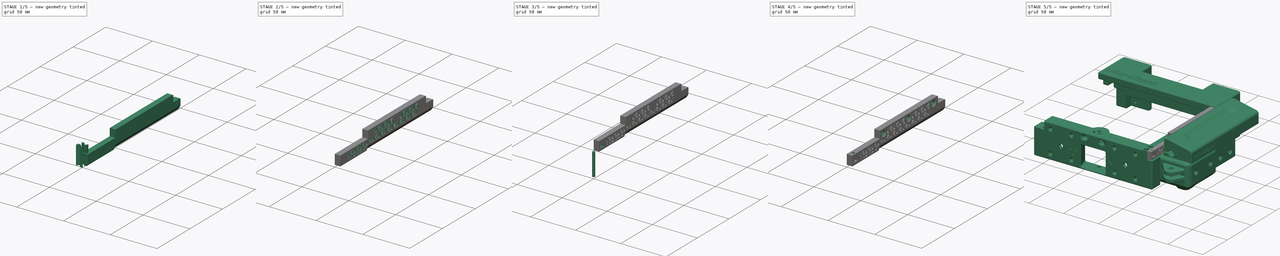
[diagram: build sequence overview — one tinted view per stage of 5, left to right]
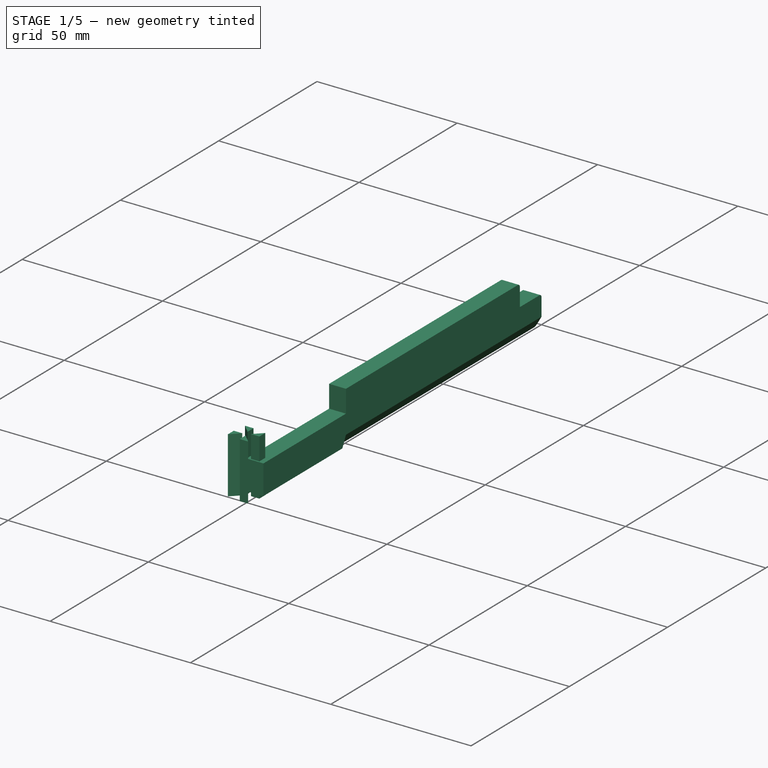
[diagram: stage 1 of 5 — iso view after this stage's code; geometry added in this stage tinted green]
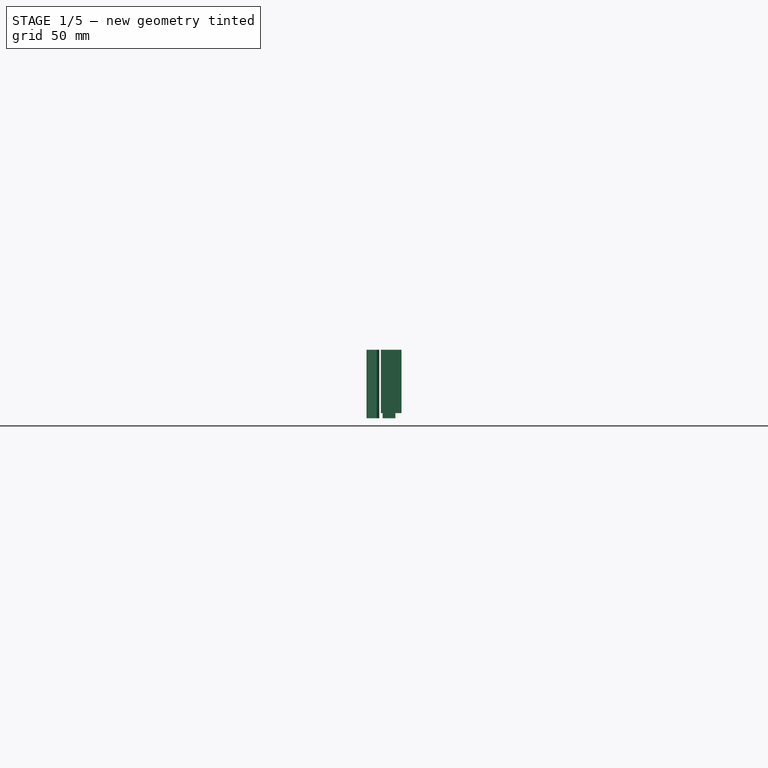
[diagram: stage 1 of 5 — front view after this stage's code; geometry added in this stage tinted green]
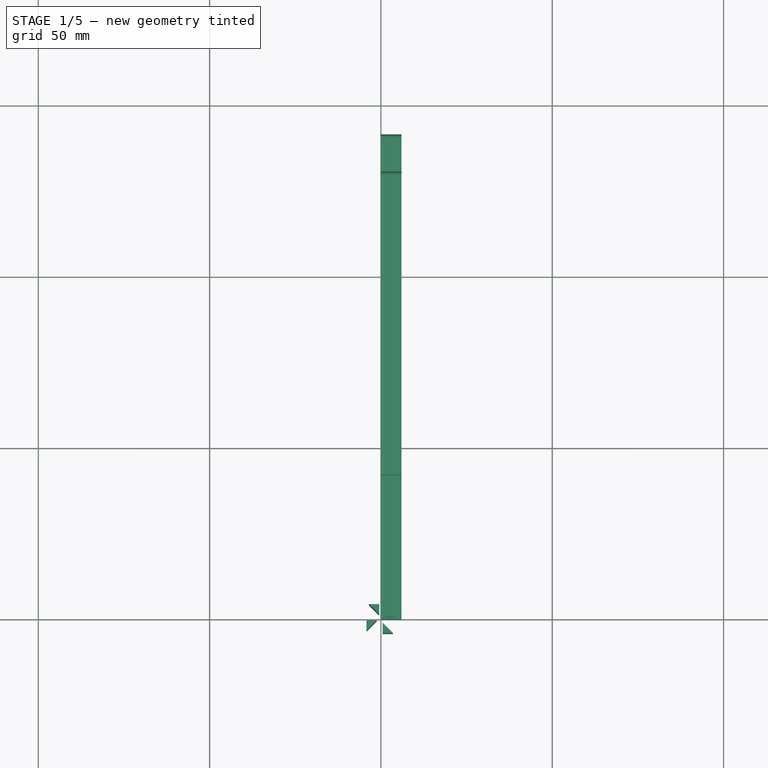
[diagram: stage 1 of 5 — top view after this stage's code; geometry added in this stage tinted green]
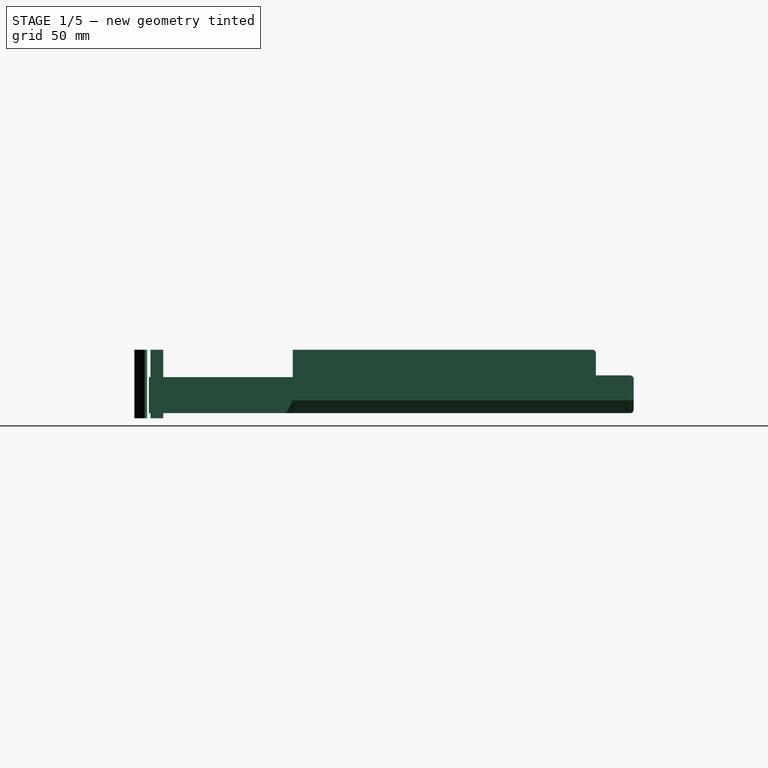
[diagram: stage 1 of 5 — right view after this stage's code; geometry added in this stage tinted green]
FCSTD DOCUMENT  (FreeCAD 0.16RUnknown)
Label: UpperLidRail
License: All rights reserved
LicenseURL: http://en.wikipedia.org/wiki/All_rights_reserved
objects: Part::FeaturePython×21, Sketcher::SketchObject×11, Part::Cut×9, PartDesign::Pad×7, App::DocumentObjectGroup×5, Part::Fillet×4, Part::Mirroring×2, Spreadsheet::Sheet×1, Part::Sweep×1, Part::MultiFuse×1, Part::Box×1, Part::Compound×1, PartDesign::Revolution×1, PartDesign::Draft×1, Part::Extrusion×1, Part::MultiCommon×1
note: 70 computed .brp shape members not serialized (recipe doc carries the construction recipe); baked Part::Feature solids carry a one-line shape summary decoded from their .brp

FEATURE [Sketcher::SketchObject] Sketch  label="Base"
  Placement = pos=(0,0,0) rot=(0.57735,0.57735,0.57735;2.0944rad)
  expr: Constraints[20] = 12 - pars.UBCClear
  expr: Constraints[17] = 12 - pars.UBCClear
  sketch-geometry (8):
    g0: LineSegment StartX=42 StartY=12 StartZ=0 EndX=0 EndY=12 EndZ=0
    g1: LineSegment StartX=0 StartY=12 StartZ=0 EndX=0 EndY=1.5 EndZ=0
    g2: LineSegment StartX=0 StartY=1.5 StartZ=0 EndX=141.5 EndY=1.5 EndZ=0
    g3: LineSegment StartX=141.5 StartY=1.5 StartZ=0 EndX=141.5 EndY=12.5 EndZ=0
    g4: LineSegment StartX=141.5 StartY=12.5 StartZ=0 EndX=130.5 EndY=12.5 EndZ=0
    g5: LineSegment StartX=130.5 StartY=12.5 StartZ=0 EndX=130.5 EndY=20 EndZ=0
    g6: LineSegment StartX=130.5 StartY=20 StartZ=0 EndX=42 EndY=20 EndZ=0
    g7: LineSegment StartX=42 StartY=20 StartZ=0 EndX=42 EndY=12 EndZ=0
  constraints (24):
    c: Coincident(g0,g1)
    c: Coincident(g1,g2)
    c: Coincident(g2,g3)
    c: Coincident(g3,g4)
    c: Coincident(g4,g5)
    c: Coincident(g5,g6)
    c: Coincident(g6,g7)
    c: Coincident(g0,g7)
    c: Vertical(g7)
    c: Vertical(g5)
    c: Vertical(g3)
    c: Vertical(g1)
    c: Horizontal(g0)
    c: Horizontal(g6)
    c: Horizontal(g2)
    c: Horizontal(g4)
    c: DistanceX(g2,g2) = 141.5
    c: DistanceX(g4,g4) = 11
    c: DistanceX(g0,g0) = 42
    c: DistanceY(g7,g7) = 8
    c: DistanceY(g3,g3) = 11
    c: PointOnObject(g1,g-2)
    c: DistanceY(g0) = 12
    c: DistanceY(g1) = 1.5
FEATURE [PartDesign::Pad] Pad  label="Base001"
  Length = 6
  Length2 = 100
  Placement = pos=(0,0,0) rot=(0.57735,0.57735,0.57735;2.0944rad)
  Sketch = -> Sketch
  Type = 0
FEATURE [App::DocumentObjectGroup] Group  label="Reference"
  Group = -> [DrawerGuide_01,YCarriage_01,FrontCorner_01,UpperBackCover_01,FrontCrane_01,AxisShield_01,Clone]
FEATURE [Sketcher::SketchObject] Sketch001  label="YSpace"
  Placement = pos=(0,42,0) rot=(1,0,0;1.5708rad)
  expr: Constraints[8] = 3.5 - pars.YClear
  sketch-geometry (4):
    g0: LineSegment StartX=2.42265 StartY=-1 StartZ=0 EndX=7 EndY=6.9282 EndZ=0
    g1: LineSegment StartX=7 StartY=6.9282 StartZ=0 EndX=7 EndY=-1 EndZ=0
    g2: LineSegment StartX=7 StartY=-1 StartZ=0 EndX=2.42265 EndY=-1 EndZ=0
    g3: GeomPoint [constr] X=3 Y=0 Z=0
  constraints (11):
    c: Coincident(g0,g1)
    c: Coincident(g1,g2)
    c: Coincident(g2,g0)
    c: DistanceY(g1) = -1
    c: Horizontal(g2)
    c: Vertical(g1)
    c: PointOnObject(g3,g0)
    c: PointOnObject(g3,g-1)
    c: DistanceX(g3) = 3
    c: Angle(g0,g-1) = 2.0944
    c: DistanceX(g1) = 7
FEATURE [PartDesign::Pad] Pad001  label="YSpace001"
  Length = 120
  Length2 = 100
  Placement = pos=(0,42,0) rot=(1,0,0;1.5708rad)
  Reversed = true
  Sketch = -> Sketch001
  Type = 0
FEATURE [Sketcher::SketchObject] Sketch012  label="MRTriangle"
  expr: Constraints[12] = pars.MRWallWidth / 2
  expr: Constraints[7] = pars.MRWallWidth / 2
  expr: Constraints[6] = pars.MRTriSide
  sketch-geometry (5):
    g0: LineSegment StartX=1.20711 StartY=0.5 StartZ=0 EndX=4.20711 EndY=3.5 EndZ=0
    g1: LineSegment StartX=4.20711 StartY=3.5 StartZ=0 EndX=4.20711 EndY=0.5 EndZ=0
    g2: LineSegment StartX=4.20711 StartY=0.5 StartZ=0 EndX=1.20711 EndY=0.5 EndZ=0
    g3: LineSegment [constr] StartX=0 StartY=0 StartZ=0 EndX=0.853553 EndY=0.853553 EndZ=0
    g4: LineSegment [constr] StartX=1.20711 StartY=0.5 StartZ=0 EndX=0.853553 EndY=0.853553 EndZ=0
  constraints (14):
    c: Coincident(g0,g1)
    c: Coincident(g1,g2)
    c: Coincident(g0,g2)
    c: Horizontal(g2)
    c: Vertical(g1)
    c: Angle(g2,g0) = 0.785398
    c: DistanceX(g2,g2) = 3
    c: DistanceY(g0) = 0.5
    c: Coincident(g4,g3)
    c: Parallel(g3,g0)
    c: Perpendicular(g0,g4)
    c: Coincident(g4,g0)
    c: Distance(g4) = 0.5
    c: Coincident(g3,g-1)
FEATURE [PartDesign::Pad] Pad004  label="MRTriangle001"
  Length = 20
  Length2 = 100
  Sketch = -> Sketch012
  Type = 0
FEATURE [Part::FeaturePython] Array  label="PolarPattern"  # Draft array (typed FeaturePython)
  Angle = 360
  ArrayType = 1
  Axis = (0,0,1)
  Base = -> Pad004
  Center = (0,0,0)
  Fuse = false
  IntervalAxis = (0,0,0)
  IntervalX = (1,0,0)
  IntervalY = (0,1,0)
  IntervalZ = (0,0,0)
  NumberPolar = 4
  NumberX = 2
  NumberY = 2
  NumberZ = 1
FEATURE [PartDesign::Draft] Draft  label="YSpaceDraft"
  Angle = 45
  Base = -> Pad001 [Face4,Face5]
  NeutralPlane = -> Pad001 [Face1]
  Placement = pos=(0,42,0) rot=(1,0,0;1.5708rad)
  Reversed = true
FEATURE [Part::Fillet] Fillet006  label="EasyAccessFillet"
  Base = -> Pad
  Edges = 3 edges r=1: [Edge8,Edge11,Edge17]
FEATURE [Part::Cut] Cut  label="YSpaceCut"
  Base = -> Fillet006
  Tool = -> Draft
FEATURE [Sketcher::SketchObject] Sketch019  label="MagnetSlot"
  expr: Constraints[11] = pars.MagnetDia / 2
  sketch-geometry (4):
    g0: ArcOfCircle CenterX=0 CenterY=0 CenterZ=0 NormalX=0 NormalY=0 NormalZ=1 Radius=2.25 StartAngle=2.3562 EndAngle=7.06858
    g1: LineSegment StartX=-1.591 StartY=1.59098 StartZ=0 EndX=-0.931981 EndY=2.25 EndZ=0
    g2: LineSegment StartX=-0.931981 StartY=2.25 StartZ=0 EndX=0.931981 EndY=2.25 EndZ=0
    g3: LineSegment StartX=0.931981 StartY=2.25 StartZ=0 EndX=1.591 EndY=1.59098 EndZ=0
  constraints (12):
    c: Coincident(g1,g2)
    c: Coincident(g2,g3)
    c: Coincident(g1,g0)
    c: Coincident(g3,g0)
    c: Horizontal(g2)
    c: Perpendicular(g3,g1)
    c: Tangent(g3,g0)
    c: Tangent(g1,g0)
    c: Angle(g1,g2) = 2.35619
    c: Coincident(g0,g-1)
    c: Tangent(g0,g2)
    c: Radius(g0) = 2.25
FEATURE [PartDesign::Pad] Pad006  label="MagnetSlot001"
  Length = 1.4
  Length2 = 100
  Sketch = -> Sketch019
  Type = 0
  expr: Length = pars.MagTol + 1
FEATURE [App::DocumentObjectGroup] Group003  label="Component_src"
  Group = -> [Pad003,Pad002,Pad005,Revolution001,Pad006]
FEATURE [Part::FeaturePython] Clone016  label="Clone of MagnetSlot001"  # Draft clone (typed FeaturePython)
  Objects = -> [Pad006]
  Placement = pos=(3,142,6) rot=(0.57735,-0.57735,0.57735;2.0944rad)
  Scale = (1,1,1)
FEATURE [Part::Cut] Cut008  label="MagnetCut"
  Base = -> Cut
  Tool = -> Clone016
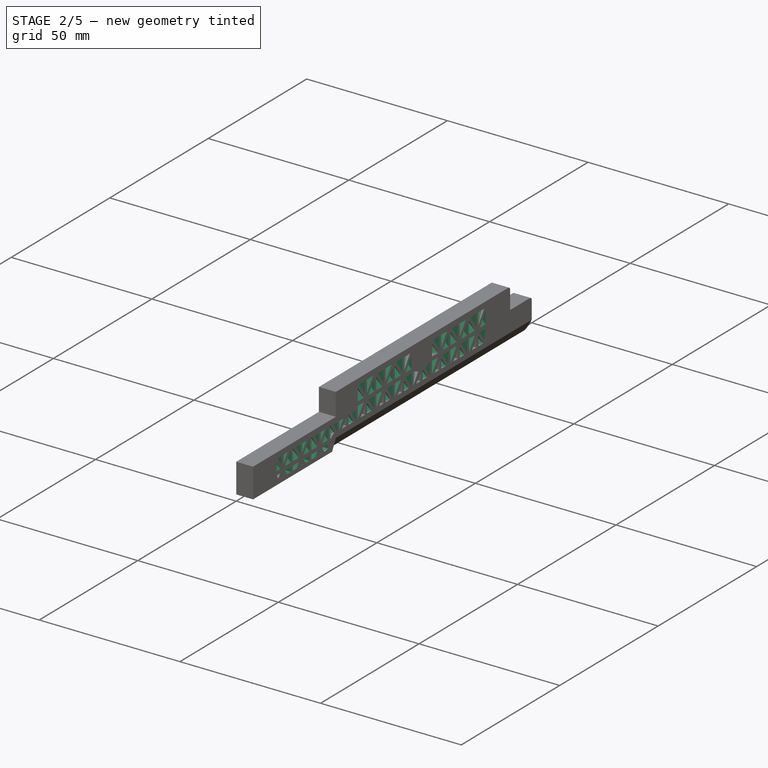
[diagram: stage 2 of 5 — iso view after this stage's code; geometry added in this stage tinted green]
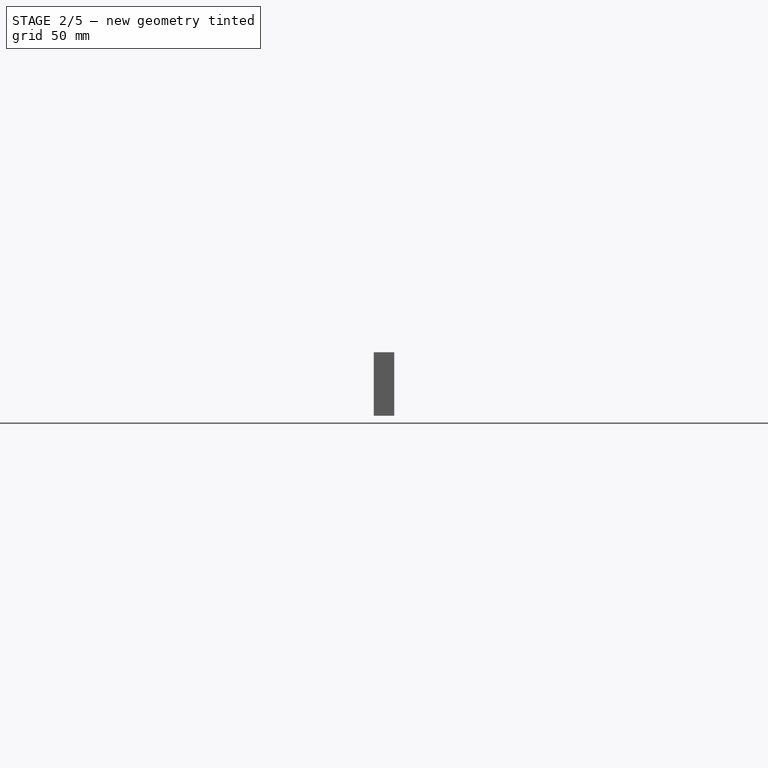
[diagram: stage 2 of 5 — front view after this stage's code; geometry added in this stage tinted green]
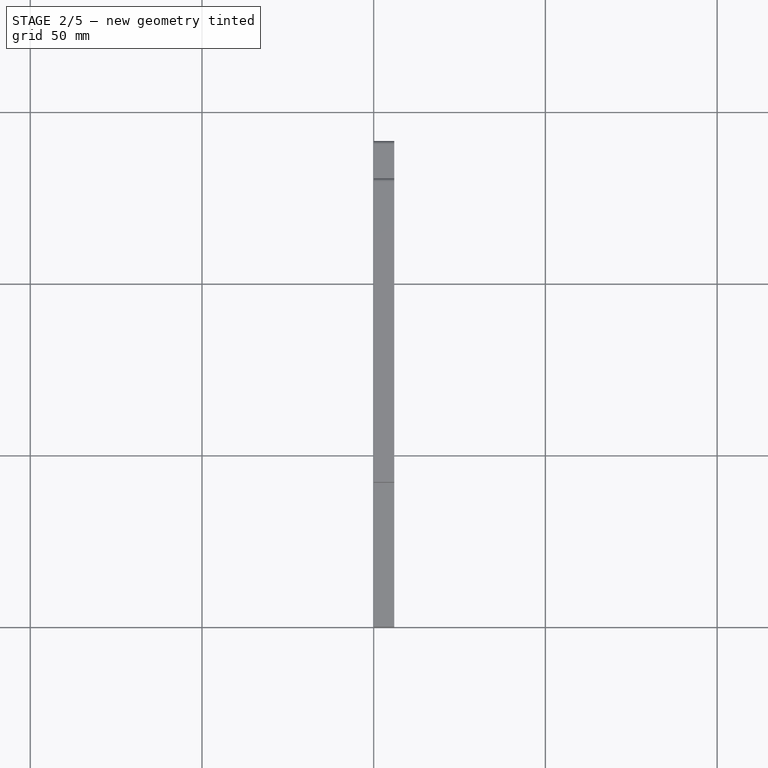
[diagram: stage 2 of 5 — top view after this stage's code; geometry added in this stage tinted green]
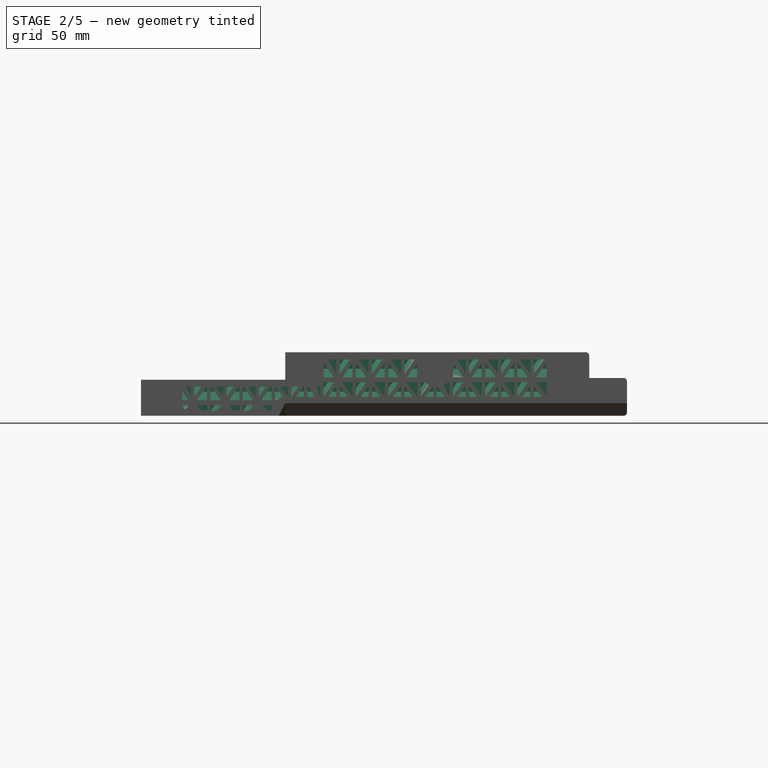
[diagram: stage 2 of 5 — right view after this stage's code; geometry added in this stage tinted green]
FEATURE [Part::Mirroring] Part__Mirroring001  label="PolarPattern (Mirror #2)"
  Base = (0,0,0)
  Normal = (1,0,0)
  Source = -> Array
FEATURE [Part::Compound] Compound  label="Cell"
  Links = -> [Part__Mirroring001,Array]
FEATURE [Part::FeaturePython] Clone008  label="Clone of Cell"  # Draft clone (typed FeaturePython)
  Objects = -> [Compound]
  Scale = (1,1,1)
FEATURE [Part::FeaturePython] Array001  label="MRPattern"  # Draft array (typed FeaturePython)
  Angle = 360
  ArrayType = 0
  Axis = (0,0,1)
  Base = -> Clone008
  Center = (0,0,0)
  Fuse = false
  IntervalAxis = (0,0,0)
  IntervalX = (9.41421,0,0)
  IntervalY = (0,9.41421,0)
  IntervalZ = (0,0,0)
  NumberPolar = 1
  NumberX = 3
  NumberY = 14
  NumberZ = 1
  Placement = pos=(2,15,-4) rot=(0,-1,0;0.785398rad)
  expr: NumberY = 1 + ceil(pars.RailLen / (pars.MRTriSide + pars.MRWallWidth * (1 + sin(45))) / 2)
  expr: IntervalY.y = 2 * (pars.MRTriSide + pars.MRWallWidth * (1 + sin(45)))
  expr: IntervalX.x = 2 * (pars.MRTriSide + pars.MRWallWidth * (1 + sin(45)))
FEATURE [Sketcher::SketchObject] Sketch018  label="MRDomain"
  Placement = pos=(0,0,0) rot=(0.57735,0.57735,0.57735;2.0944rad)
  sketch-geometry (12):
    g0: LineSegment StartX=12 StartY=10 StartZ=0 EndX=53 EndY=10 EndZ=0
    g1: LineSegment StartX=38 StartY=3 StartZ=0 EndX=12 EndY=3 EndZ=0
    g2: LineSegment StartX=12 StartY=3 StartZ=0 EndX=12 EndY=10 EndZ=0
    g3: LineSegment StartX=40.3094 StartY=7 StartZ=0 EndX=119 EndY=7 EndZ=0
    g4: LineSegment StartX=119 StartY=7 StartZ=0 EndX=119 EndY=18 EndZ=0
    g5: LineSegment StartX=53 StartY=18 StartZ=0 EndX=81 EndY=18 EndZ=0
    g6: LineSegment StartX=81 StartY=18 StartZ=0 EndX=81 EndY=15 EndZ=0
    g7: LineSegment StartX=91 StartY=15 StartZ=0 EndX=91 EndY=18 EndZ=0
    g8: LineSegment StartX=91 StartY=18 StartZ=0 EndX=119 EndY=18 EndZ=0
    g9: ArcOfCircle CenterX=86 CenterY=15 CenterZ=0 NormalX=0 NormalY=0 NormalZ=1 Radius=5 StartAngle=3.14159 EndAngle=6.28319
    g10: LineSegment StartX=38 StartY=3 StartZ=0 EndX=40.3094 EndY=7 EndZ=0
    g11: LineSegment StartX=53 StartY=18 StartZ=0 EndX=53 EndY=10 EndZ=0
  constraints (37):
    c: Coincident(g1,g2)
    c: Coincident(g2,g0)
    c: Horizontal(g0)
    c: Horizontal(g1)
    c: Vertical(g2)
    c: Coincident(g3,g4)
    c: Coincident(g5,g6)
    c: Coincident(g7,g8)
    c: Coincident(g9,g6)
    c: Coincident(g9,g7)
    c: Tangent(g7,g9)
    c: Tangent(g6,g9)
    c: Coincident(g11,g5)
    c: Coincident(g0,g11)
    c: Coincident(g10,g3)
    c: Coincident(g1,g10)
    c: Coincident(g8,g4)
    c: Vertical(g4)
    c: Vertical(g11)
    c: Vertical(g6)
    c: Vertical(g7)
    c: Horizontal(g5)
    c: Horizontal(g3)
    c: Horizontal(g8)
    c: DistanceX(g9) = 86
    c: DistanceY(g9) = 15
    c: PointOnObject(g7,g5)
    c: DistanceY(g5) = 18
    c: Radius(g9) = 5
    c: DistanceX(g0) = 53
    c: DistanceY(g2,g2) = 7
    c: DistanceY(g1) = 3
    c: DistanceX(g1,g1) = 26
    c: DistanceX(g0) = 12
    c: DistanceY(g3) = 7
    c: Angle(g10) = 1.0472
    c: DistanceX(g8,g8) = 28
FEATURE [Part::Extrusion] Extrude  label="MRDomain001"
  Base = -> Sketch018
  Dir = (3,0,0)
  Solid = true
FEATURE [Part::Fillet] Fillet  label="MRDFillet001"
  Base = -> Extrude
  Edges = 10 edges r=2: [Edge1,Edge2,Edge5,Edge8,Edge11,Edge14,Edge23,Edge26,Edge29,Edge32]
FEATURE [App::DocumentObjectGroup] Group004  label="MR_src"
  Group = -> [Fillet005,Pad004,Array,Compound,Sketch018,Extrude,Fillet,Array001]
FEATURE [Part::FeaturePython] Clone013  label="Clone of MRDFillet001"  # Draft clone (typed FeaturePython)
  Objects = -> [Fillet]
  Placement = pos=(3.5,0,0) rot=(0,0,1;0rad)
  Scale = (1,1,1)
FEATURE [Part::FeaturePython] Clone014  label="Clone of MRPattern"  # Draft clone (typed FeaturePython)
  Objects = -> [Array001]
  Placement = pos=(2,15,-4) rot=(0,-1,0;0.785398rad)
  Scale = (1,1,1)
FEATURE [Part::MultiCommon] Common  label="MRTool"
  Shapes = -> [Clone014,Clone013]
FEATURE [Part::Cut] Cut001  label="MRCut"
  Base = -> Cut008
  Tool = -> Common
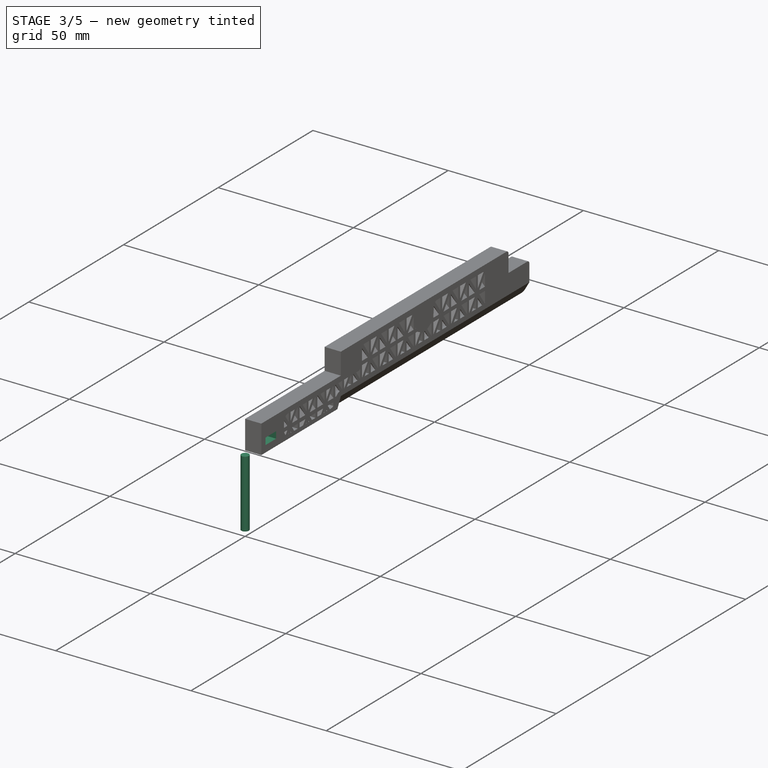
[diagram: stage 3 of 5 — iso view after this stage's code; geometry added in this stage tinted green]
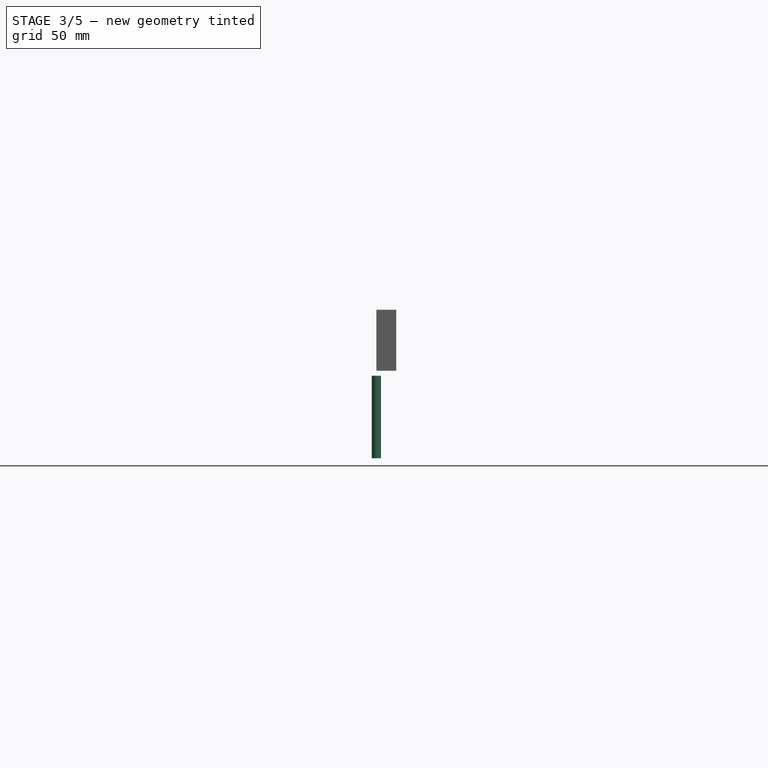
[diagram: stage 3 of 5 — front view after this stage's code; geometry added in this stage tinted green]
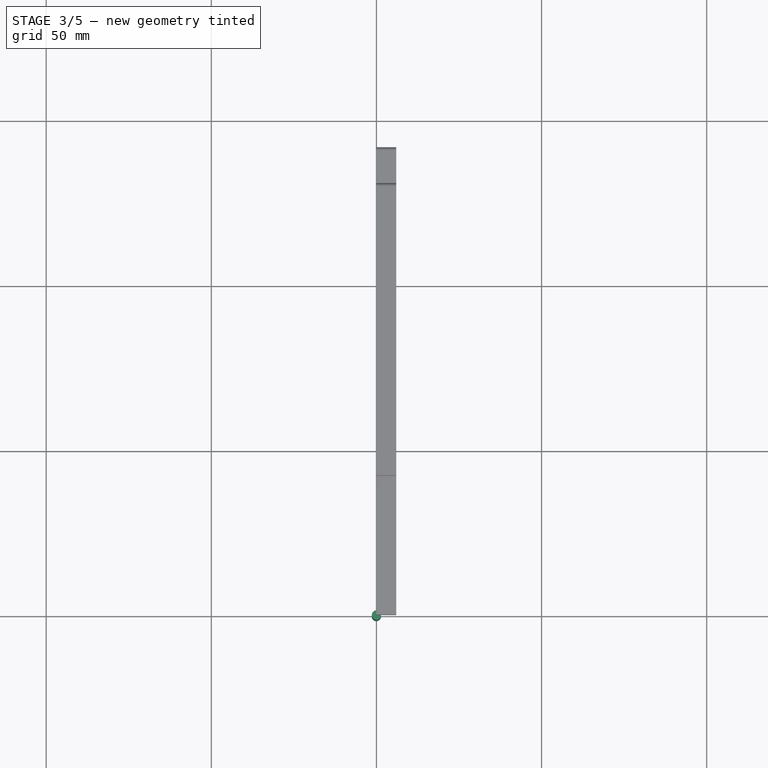
[diagram: stage 3 of 5 — top view after this stage's code; geometry added in this stage tinted green]
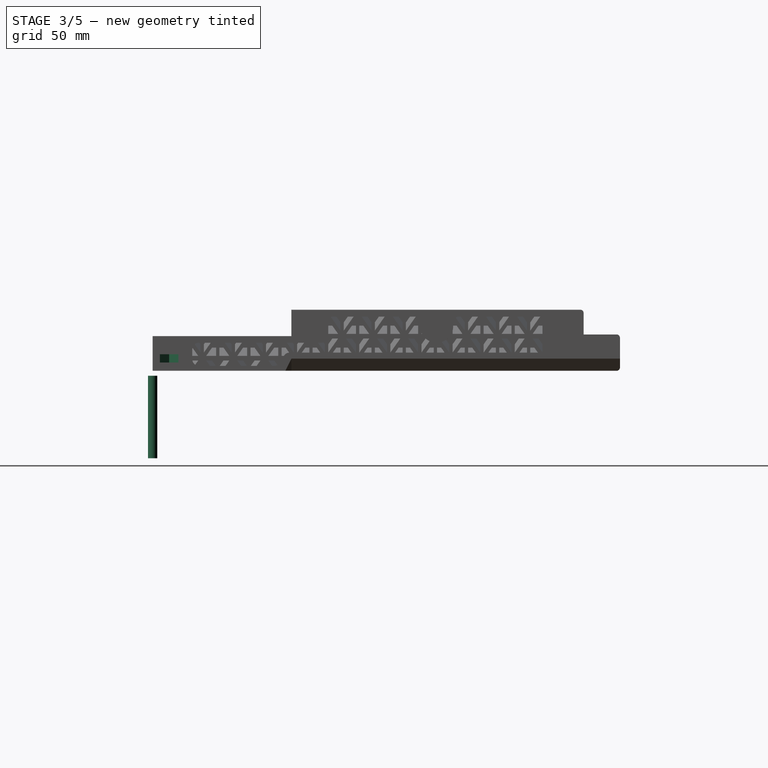
[diagram: stage 3 of 5 — right view after this stage's code; geometry added in this stage tinted green]
FEATURE [Sketcher::SketchObject] Sketch005  label="RailPath"
  Placement = pos=(0,0,0) rot=(1,0,0;1.5708rad)
  expr: Constraints[9] = pars.RailLen / 2
  sketch-geometry (3):
    g0: LineSegment StartX=6.5 StartY=0 StartZ=0 EndX=6.5 EndY=57.5 EndZ=0
    g1: ArcOfCircle CenterX=10.5 CenterY=57.5 CenterZ=0 NormalX=0 NormalY=0 NormalZ=1 Radius=4 StartAngle=1.5708 EndAngle=3.1416
    g2: LineSegment StartX=10.5 StartY=61.5 StartZ=0 EndX=18.5 EndY=61.5 EndZ=0
  constraints (11):
    c: Coincident(g1,g0)
    c: Tangent(g1,g0)
    c: Vertical(g0)
    c: PointOnObject(g0,g-1)
    c: Horizontal(g2)
    c: Coincident(g2,g1)
    c: Tangent(g2,g1)
    c: DistanceX(g1) = 10.5
    c: DistanceX(g2,g2) = 8
    c: DistanceY(g0,g0) = 57.5
    c: Radius(g1) = 4
FEATURE [Sketcher::SketchObject] Sketch011  label="RailSection"
  expr: Constraints[6] = pars.BallShapeTol + 3
  sketch-geometry (4):
    g0: Circle [constr] CenterX=10 CenterY=-2.5e-11 CenterZ=0 NormalX=0 NormalY=0 NormalZ=1 Radius=2.946
    g1: LineSegment StartX=10.2 StartY=4.36627 StartZ=0 EndX=5.83373 EndY=0 EndZ=0
    g2: LineSegment StartX=5.83373 StartY=0 StartZ=0 EndX=10.2 EndY=-4.36627 EndZ=0
    g3: LineSegment StartX=10.2 StartY=-4.36627 StartZ=0 EndX=10.2 EndY=4.36627 EndZ=0
  constraints (12):
    c: Coincident(g1,g2)
    c: Coincident(g2,g3)
    c: Coincident(g1,g3)
    c: Vertical(g3)
    c: Perpendicular(g2,g1)
    c: Angle(g1) = -2.35619
    c: Radius(g0) = 2.946
    c: Tangent(g1,g0)
    c: Tangent(g0,g2)
    c: DistanceX(g0) = 10
    c: DistanceX(g1) = 10.2
    c: PointOnObject(g1,g-1)
FEATURE [Part::Sweep] Sweep  label="RailSweep"
  Frenet = false
  Sections = -> [Sketch011]
  Solid = true
  Spine = -> Sketch005 [Edge1,Edge2,Edge3]
  Transition = 1
FEATURE [Part::Fillet] Fillet003  label="RailFillet"
  Base = -> Sweep
  Edges = 1 edges r=2.6: [Edge17]
FEATURE [Part::Mirroring] Part__Mirroring  label="RailFillet (Mirror #1)"
  Base = (0,0,0)
  Normal = (0,0,1)
  Source = -> Fillet003
FEATURE [Part::MultiFuse] Fusion  label="GuideMirror"
  Shapes = -> [Part__Mirroring,Fillet003]
FEATURE [Part::FeaturePython] refine  label="Guide"  # WARN: FeaturePython — macro-defined, semantics opaque (R4)
  Base = -> Fusion
FEATURE [App::DocumentObjectGroup] Group002  label="Guide_src"
  Group = -> [Sketch005,refine]
FEATURE [Part::FeaturePython] Clone001  label="Clone of Guide"  # Draft clone (typed FeaturePython)
  Objects = -> [refine]
  Placement = pos=(9.835,77,6) rot=(0,0.707107,0.707107;3.14159rad)
  Scale = (1,1,1)
  expr: Placement.Base.x = 10 - pars.GuideTight
FEATURE [Sketcher::SketchObject] Sketch002  label="DIN912PrintM3Thread"
  expr: Constraints[11] = 1.5 - pars.CilTight
  sketch-geometry (4):
    g0: ArcOfCircle CenterX=0 CenterY=0 CenterZ=0 NormalX=0 NormalY=0 NormalZ=1 Radius=1.4 StartAngle=2.3562 EndAngle=7.06858
    g1: LineSegment StartX=-0.98995 StartY=0.989949 StartZ=0 EndX=-0.579899 EndY=1.4 EndZ=0
    g2: LineSegment StartX=-0.579899 StartY=1.4 StartZ=0 EndX=0.579899 EndY=1.4 EndZ=0
    g3: LineSegment StartX=0.579899 StartY=1.4 StartZ=0 EndX=0.989954 EndY=0.989945 EndZ=0
  constraints (12):
    c: Coincident(g1,g2)
    c: Coincident(g2,g3)
    c: Coincident(g1,g0)
    c: Coincident(g3,g0)
    c: Horizontal(g2)
    c: Perpendicular(g3,g1)
    c: Tangent(g3,g0)
    c: Tangent(g1,g0)
    c: Angle(g1,g2) = 2.35619
    c: Coincident(g0,g-1)
    c: Tangent(g0,g2)
    c: Radius(g0) = 1.4
FEATURE [PartDesign::Pad] Pad003  label="DIN912PrintM3Thread001"
  Length = 25
  Length2 = 100
  Reversed = true
  Sketch = -> Sketch002
  Type = 0
FEATURE [Sketcher::SketchObject] Sketch017  label="DIN934M3Slot"
  expr: Constraints[13] = pars.NutWidthClearmm + 5.5
  sketch-geometry (6):
    g0: LineSegment StartX=-2.8 StartY=20 StartZ=0 EndX=-2.8 EndY=-1.61658 EndZ=0
    g1: LineSegment StartX=-2.8 StartY=-1.61658 StartZ=0 EndX=0 EndY=-3.23316 EndZ=0
    g2: LineSegment StartX=0 StartY=-3.23316 StartZ=0 EndX=2.8 EndY=-1.61658 EndZ=0
    g3: LineSegment StartX=2.8 StartY=-1.61658 StartZ=0 EndX=2.8 EndY=20 EndZ=0
    g4: LineSegment StartX=2.8 StartY=20 StartZ=0 EndX=-2.8 EndY=20 EndZ=0
    g5: Circle [constr] CenterX=0 CenterY=0 CenterZ=0 NormalX=0 NormalY=0 NormalZ=1 Radius=3.23316
  constraints (17):
    c: Coincident(g0,g1)
    c: Coincident(g1,g2)
    c: Coincident(g2,g3)
    c: Coincident(g3,g4)
    c: Coincident(g0,g4)
    c: Horizontal(g4)
    c: Vertical(g0)
    c: Vertical(g3)
    c: Coincident(g5,g-1)
    c: PointOnObject(g0,g5)
    c: PointOnObject(g2,g5)
    c: PointOnObject(g1,g5)
    c: PointOnObject(g1,g-2)
    c: DistanceX(g4,g4) = 5.6
    c: Symmetric(g0,g3,g-2)
    c: Angle(g2,g1) = 2.0944
    c: DistanceY(g0) = 20
FEATURE [PartDesign::Pad] Pad005  label="DIN934M3Slot001"
  Length = 2.5
  Length2 = 100
  Sketch = -> Sketch017
  Type = 0
  expr: Length = pars.NutThickClearmm + 2.4
FEATURE [Part::FeaturePython] Clone005  label="Clone of DIN934M3Slot001"  # Draft clone (typed FeaturePython)
  Objects = -> [Pad005]
  Placement = pos=(3.5,5,4) rot=(0,0,-1;1.5708rad)
  Scale = (1,1,1)
FEATURE [Part::Cut] Cut002  label="GuideCut"
  Base = -> Cut001
  Tool = -> Clone001
FEATURE [Part::Cut] Cut003
  Base = -> Cut002
  Tool = -> Clone005
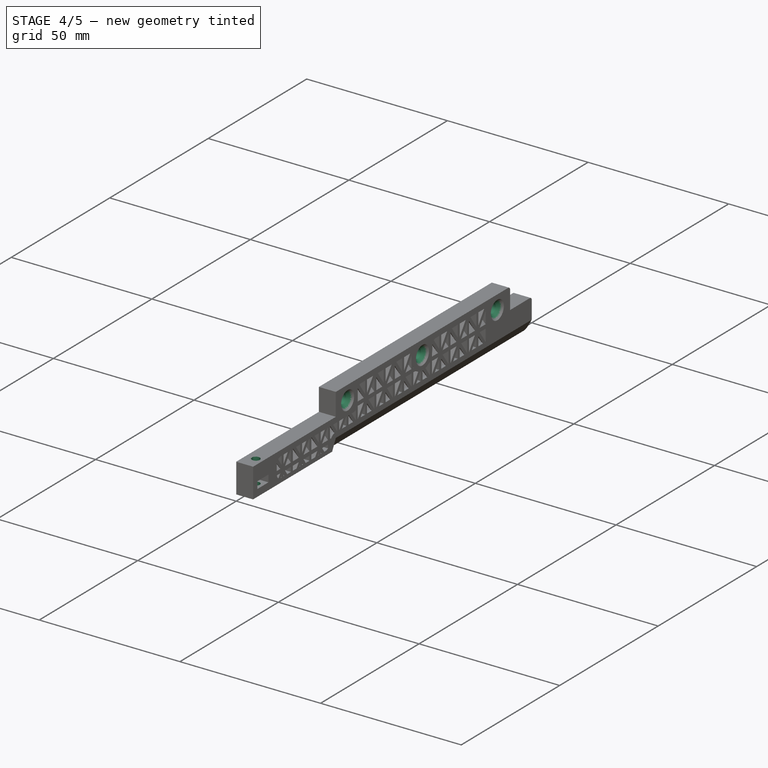
[diagram: stage 4 of 5 — iso view after this stage's code; geometry added in this stage tinted green]
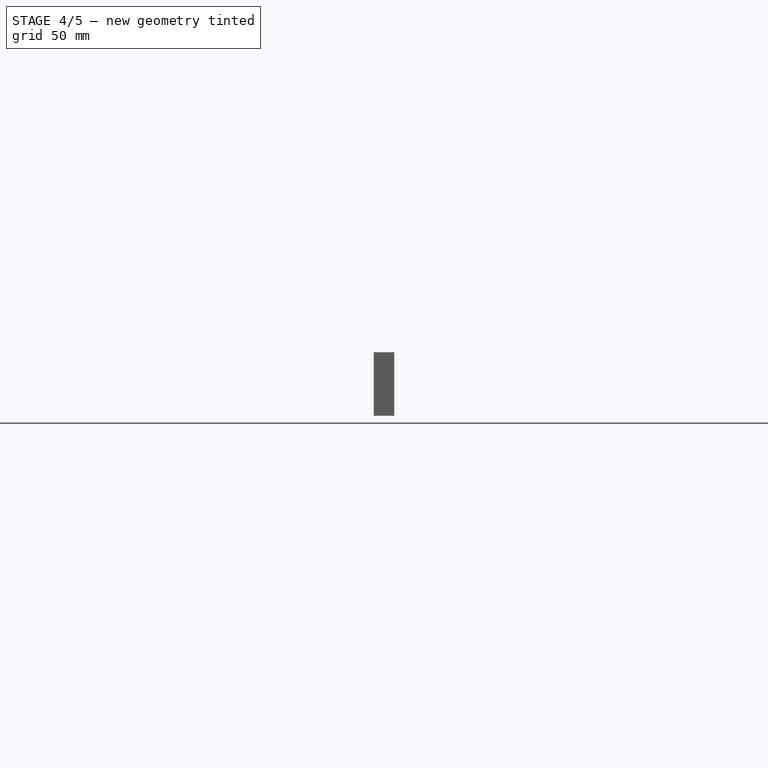
[diagram: stage 4 of 5 — front view after this stage's code; geometry added in this stage tinted green]
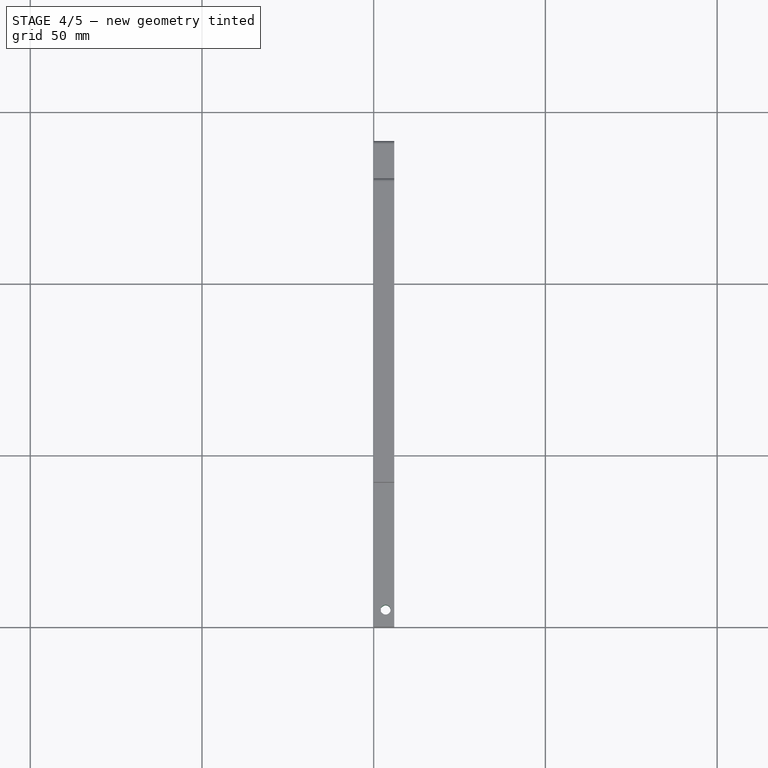
[diagram: stage 4 of 5 — top view after this stage's code; geometry added in this stage tinted green]
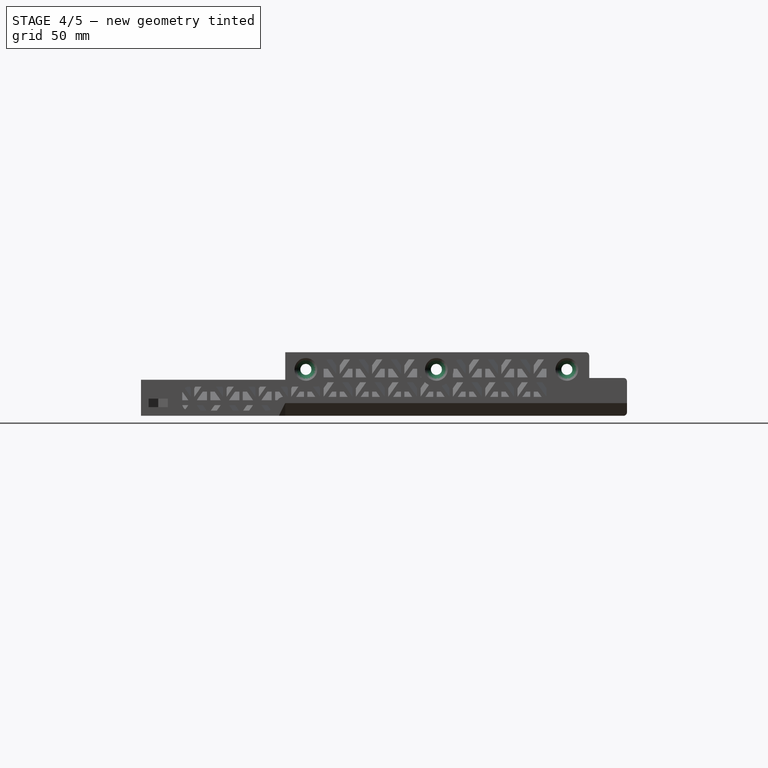
[diagram: stage 4 of 5 — right view after this stage's code; geometry added in this stage tinted green]
FEATURE [Sketcher::SketchObject] Sketch003  label="DIN912PrintM3Head"
  Support = -> Pad003 [Face5]
  expr: Constraints[11] = 3 + pars.CilLoose
  sketch-geometry (4):
    g0: ArcOfCircle CenterX=0 CenterY=0 CenterZ=0 NormalX=0 NormalY=0 NormalZ=1 Radius=3.1 StartAngle=2.35619 EndAngle=7.06859
    g1: LineSegment StartX=-2.19202 StartY=2.19204 StartZ=0 EndX=-1.28406 EndY=3.1 EndZ=0
    g2: LineSegment StartX=-1.28406 StartY=3.1 StartZ=0 EndX=1.28406 EndY=3.1 EndZ=0
    g3: LineSegment StartX=1.28406 StartY=3.1 StartZ=0 EndX=2.19203 EndY=2.19204 EndZ=0
  constraints (12):
    c: Coincident(g1,g2)
    c: Coincident(g2,g3)
    c: Coincident(g1,g0)
    c: Coincident(g3,g0)
    c: Horizontal(g2)
    c: Perpendicular(g3,g1)
    c: Tangent(g3,g0)
    c: Tangent(g1,g0)
    c: Angle(g1,g2) = 2.35619
    c: Coincident(g0,g-1)
    c: Tangent(g0,g2)
    c: Radius(g0) = 3.1
FEATURE [PartDesign::Pad] Pad002  label="DIN912PrintM3Head001"
  Length = 10
  Length2 = 100
  Sketch = -> Sketch003
  Type = 0
FEATURE [Sketcher::SketchObject] Sketch010  label="DIN7991M3Bolt"
  expr: Constraints[11] = pars.CilLoose + 1.5
  sketch-geometry (5):
    g0: LineSegment StartX=0 StartY=0 StartZ=0 EndX=3.3 EndY=0 EndZ=0
    g1: LineSegment StartX=3.3 StartY=0 StartZ=0 EndX=1.6 EndY=-1.7 EndZ=0
    g2: LineSegment StartX=1.6 StartY=-1.7 StartZ=0 EndX=1.6 EndY=-20 EndZ=0
    g3: LineSegment StartX=1.6 StartY=-20 StartZ=0 EndX=0 EndY=-20 EndZ=0
    g4: LineSegment StartX=0 StartY=-20 StartZ=0 EndX=0 EndY=0 EndZ=0
  constraints (14):
    c: Coincident(g0,g1)
    c: Coincident(g1,g2)
    c: Coincident(g2,g3)
    c: Coincident(g3,g4)
    c: Coincident(g4,g0)
    c: Vertical(g4)
    c: Vertical(g2)
    c: Horizontal(g0)
    c: Horizontal(g3)
    c: Coincident(g0,g-1)
    c: Angle(g0,g1) = 0.785398
    c: DistanceX(g3,g3) = 1.6
    c: DistanceY(g4,g4) = 20
    c: DistanceY(g1,g0) = 1.7
FEATURE [PartDesign::Revolution] Revolution001  label="DIN7991M3Bolt001"
  Angle = 360
  Axis = (0,1,0)
  Base = (0,0,0)
  ReferenceAxis = -> Sketch010 [V_Axis]
  Reversed = true
  Sketch = -> Sketch010
FEATURE [Part::FeaturePython] Clone009  label="Clone of DIN7991M3Bolt001"  # Draft clone (typed FeaturePython)
  Objects = -> [Revolution001]
  Placement = pos=(6,48,15) rot=(0,0,-1;1.5708rad)
  Scale = (1,1,1)
FEATURE [Part::FeaturePython] Clone010  label="Clone of DIN7991M3Bolt002"  # Draft clone (typed FeaturePython)
  Objects = -> [Revolution001]
  Placement = pos=(6,86,15) rot=(0,0,-1;1.5708rad)
  Scale = (1,1,1)
FEATURE [Part::FeaturePython] Clone011  label="Clone of DIN7991M3Bolt003"  # Draft clone (typed FeaturePython)
  Objects = -> [Revolution001]
  Placement = pos=(6,124,15) rot=(0,0,-1;1.5708rad)
  Scale = (1,1,1)
FEATURE [Part::FeaturePython] Clone012  label="Clone of DIN912PrintM3Head001"  # Draft clone (typed FeaturePython)
  Objects = -> [Pad002]
  Placement = pos=(3.5,5,22) rot=(0,0,1;1.5708rad)
  Scale = (1,1,1)
FEATURE [Part::Cut] Cut004
  Base = -> Cut003
  Tool = -> Clone012
FEATURE [Part::Cut] Cut005
  Base = -> Cut004
  Tool = -> Clone009
FEATURE [Part::Cut] Cut006
  Base = -> Cut005
  Tool = -> Clone010
FEATURE [Part::Cut] Cut007  label="HardwareCuts"
  Base = -> Cut006
  Tool = -> Clone011
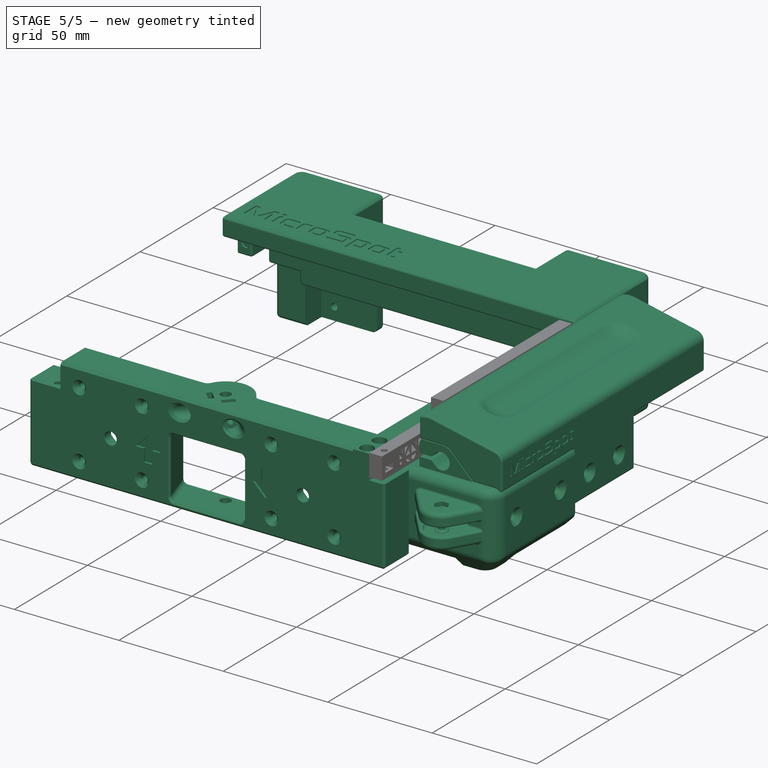
[diagram: stage 5 of 5 — iso view after this stage's code; geometry added in this stage tinted green]
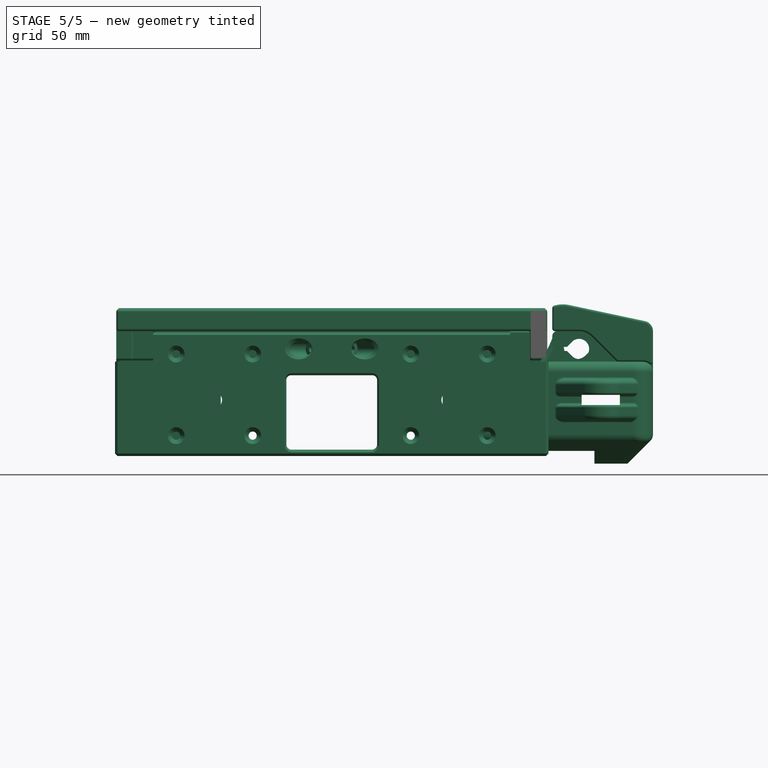
[diagram: stage 5 of 5 — front view after this stage's code; geometry added in this stage tinted green]
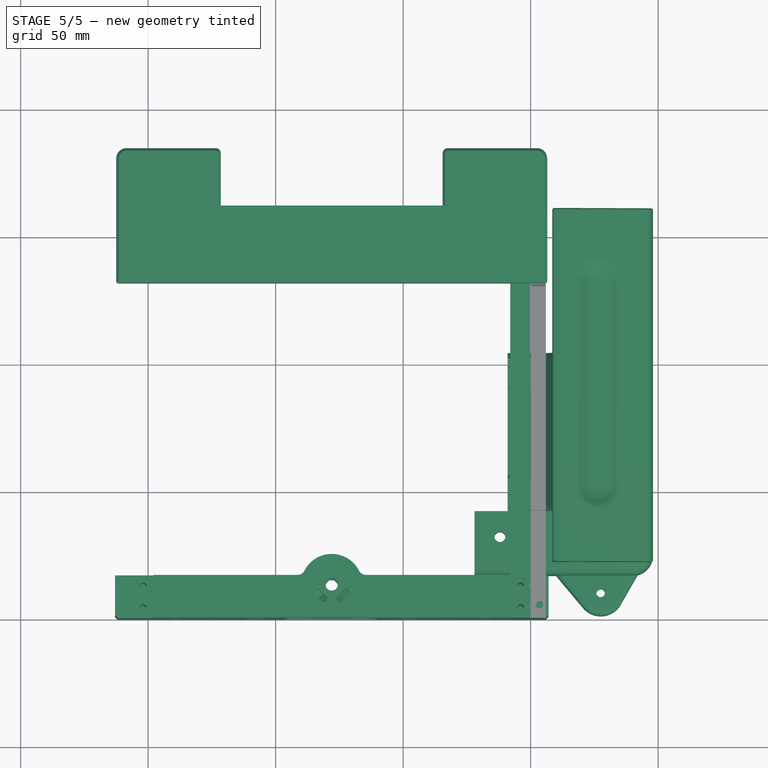
[diagram: stage 5 of 5 — top view after this stage's code; geometry added in this stage tinted green]
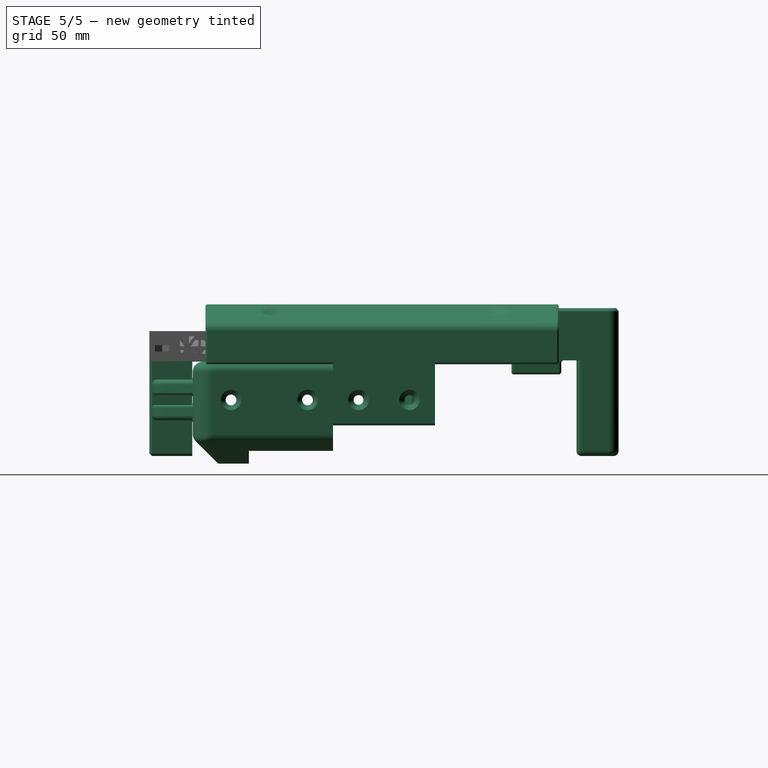
[diagram: stage 5 of 5 — right view after this stage's code; geometry added in this stage tinted green]
FEATURE [Spreadsheet::Sheet] Spreadsheet  label="pars"
  cells = A1=Bolts and Nuts; B1=Value; D1=Components; E1=Value; A2=Thread Tight Tolerance (Radius, ratio); B2(ThrTighRatio)=0.96; D2=Tight Cilinder Tolerances (Radius, mm); E2(CilTight)=0.1; A3=Thread Tight Tolerance (Radius, mm); B3(ThrTightmm)=0.1; D3=Loose Cilinder Tolerances (Radius, mm); E3(CilLoose)=0.1; A5=Nut Slot Width Clearance (mm); B5(NutWidthClearmm)=0.1; A6=Nut Slot Thickess Clearance (mm); B6(NutThickClearmm)=0.1; A13=Particular parameters; B13=Value; A14=Y Carriage Clearance; B14(YClear)=0.5; A15=Upper Back Cover Clearance; B15(UBCClear)=1; A16=Ball Shape Tolerance; B16(BallShapeTol)=-0.054; A17=Rail Length; B17(RailLen)=115; A18=Material Reduction Triangle Side; B18(MRTriSide)=3; A19=Material Reduction WallWidth; B19(MRWallWidth)=1; A20=Guide Tightness; B20(GuideTight)=0.165; A21=Magnet Diameter; B21(MagnetDia)=4.5; A22=Magnet Depth Tolerance; B22(MagTol)=0.4
FEATURE [Part::FeaturePython] FrontCrane_01  label="FrontCrane"  # a2plus imported part (geometry in sourceFile) (typed FeaturePython)
  Placement = pos=(-78,17,-15) rot=(0,0,1;0rad)
  fixedPosition = false
  sourceFile = ./../Axes/ZCarriage/FrontCrane.fcstd
  timeLastImport = 1.52163e+09
  updateColors = true
FEATURE [Part::FeaturePython] DrawerGuide_01  label="DrawerGuide"  # a2plus imported part (geometry in sourceFile) (typed FeaturePython)
  Placement = pos=(-8,0,0) rot=(0,0,1;0rad)
  fixedPosition = false
  sourceFile = ./../Axes/ZCarriage/DrawerGuide.fcstd
  timeLastImport = 1.52163e+09
  updateColors = true
FEATURE [Part::FeaturePython] AxisShield_01  label="RAxisShield"  # a2plus imported part (geometry in sourceFile) (typed FeaturePython)
  Placement = pos=(32,92,-15) rot=(0,0,1;0rad)
  fixedPosition = false
  sourceFile = ./../MainFrame/AxisShield.fcstd
  timeLastImport = 1.52163e+09
  updateColors = true
FEATURE [Part::FeaturePython] FrontCorner_01  label="FrontCorner"  # a2plus imported part (geometry in sourceFile) (typed FeaturePython)
  Placement = pos=(32,10,-15) rot=(0,0,1;0rad)
  fixedPosition = false
  sourceFile = ./../MainFrame/FrontCorner.fcstd
  timeLastImport = 1.52163e+09
  updateColors = true
FEATURE [Part::FeaturePython] YCarriage_01  label="RYCarriage"  # a2plus imported part (geometry in sourceFile) (typed FeaturePython)
  Placement = pos=(-9,97,-14) rot=(0,0,1;0rad)
  fixedPosition = false
  sourceFile = ./../../Step/Printed/Axes/YCarriage/RYCarriage.step
  timeLastImport = 1.5206e+09
  updateColors = true
FEATURE [Part::FeaturePython] UpperBackCover_01  label="UpperBackCover"  # a2plus imported part (geometry in sourceFile) (typed FeaturePython)
  Placement = pos=(-78,152,21) rot=(0,0,1;0rad)
  fixedPosition = false
  sourceFile = ./../Axes/ZCarriage/UpperBackCover.fcstd
  timeLastImport = 1.52163e+09
  updateColors = true
FEATURE [Part::FeaturePython] Clone  label="Clone of RYCarriage"  # Draft clone (typed FeaturePython)
  Objects = -> [YCarriage_01]
  Placement = pos=(-9,73,-14) rot=(0,0,1;0rad)
  Scale = (1,1,1)
FEATURE [Part::Box] Box  label="MRFillet001"
  Height = 8
  Length = 3
  Placement = pos=(0,18,2) rot=(0,0,1;0rad)
  Width = 124
FEATURE [Part::Fillet] Fillet005  label="MRDFillet"
  Base = -> Box
  Edges = 4 edges r=2: [Edge9,Edge10,Edge11,Edge12]
FEATURE [App::DocumentObjectGroup] Group001  label="src"
  Group = -> [Pad001,Cut007]
FEATURE [Part::FeaturePython] Clone015  label="UpperLidRail"  # Draft clone (typed FeaturePython)
  Objects = -> [Cut007]
  Scale = (1,1,1)
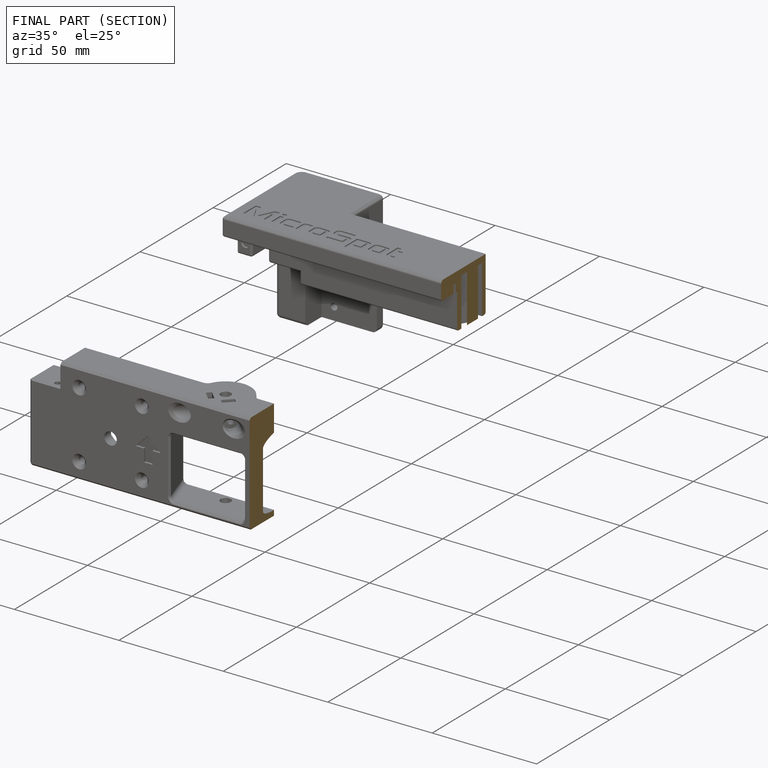
[diagram: finished part — half-section view (interior)]
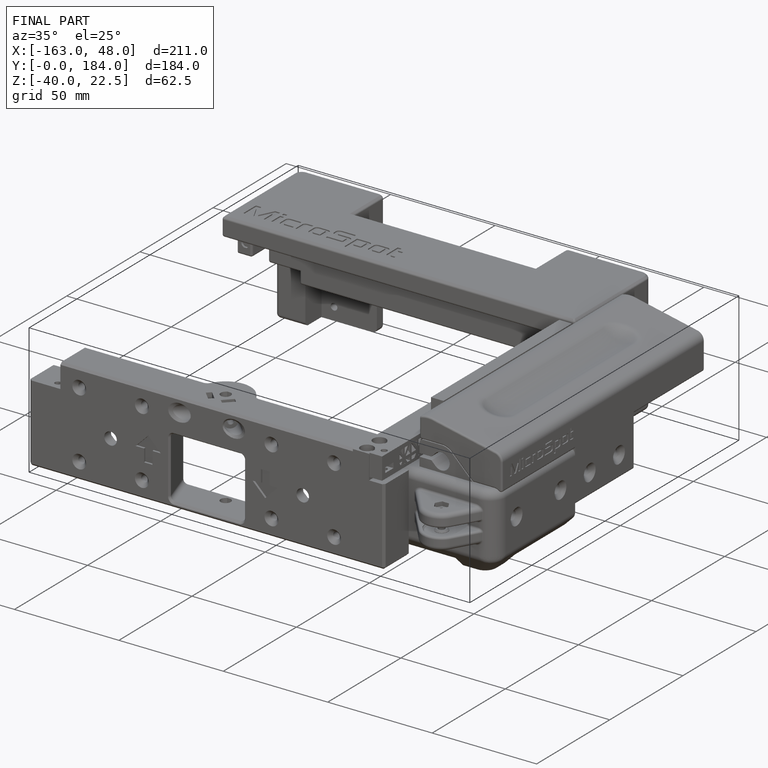
[diagram: finished part — iso view with bounding-box wireframe]
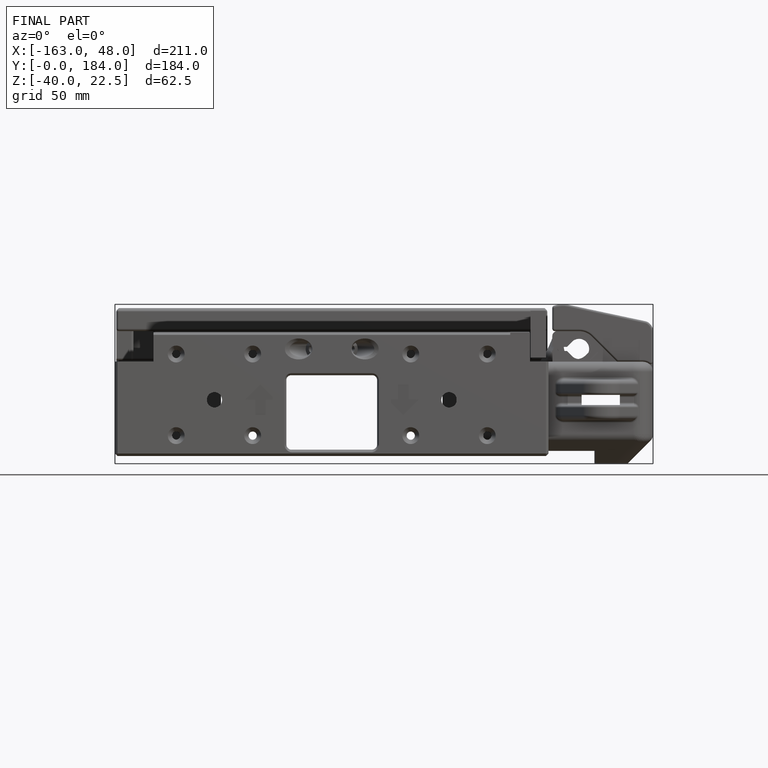
[diagram: finished part — front view with bounding-box wireframe]
